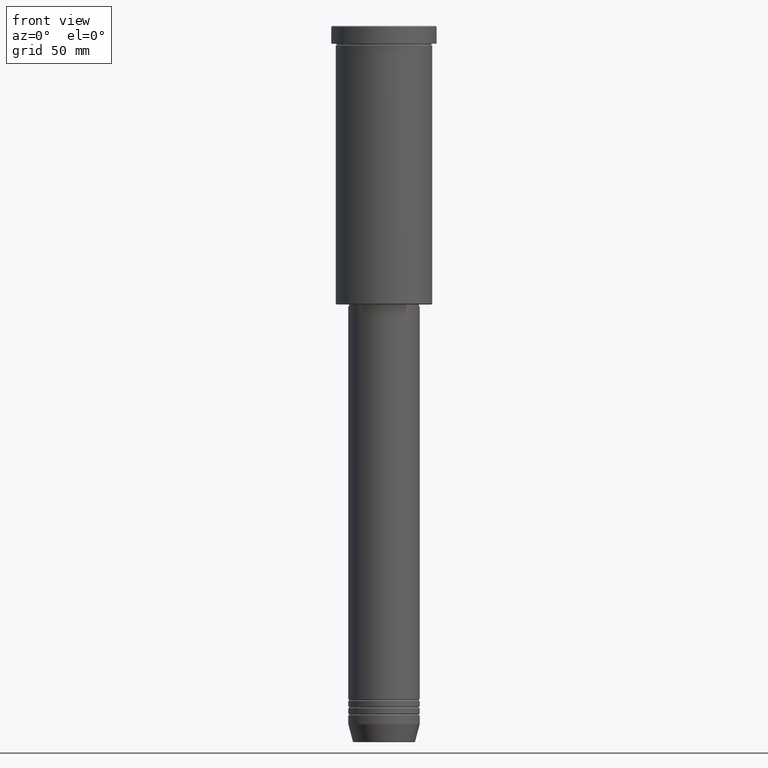
[diagram: clean part render]
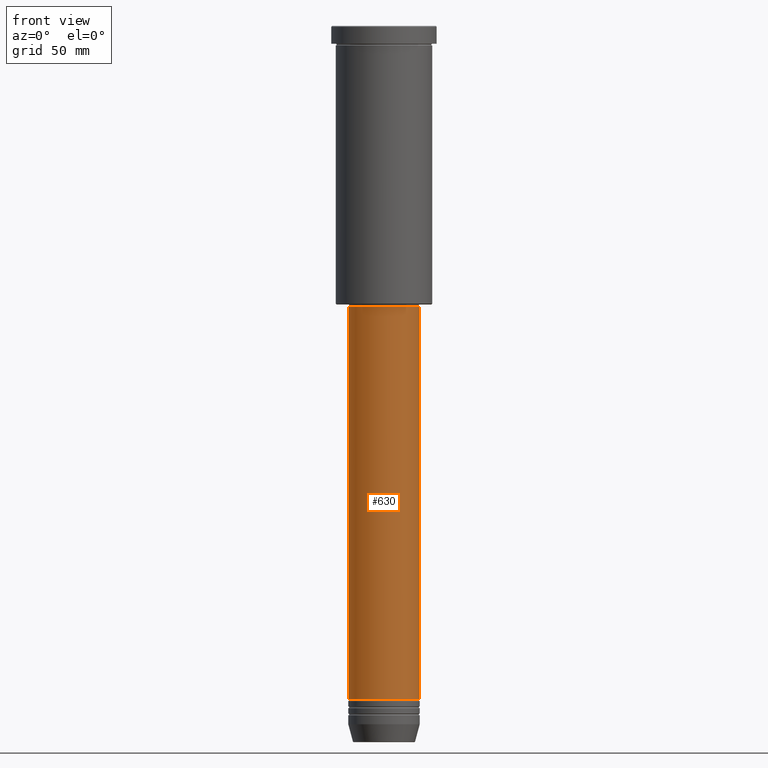
[diagram: same view with one face highlighted and labeled with its STEP entity id]
A machine part, front view. The second image highlights one B-rep face of the part: STEP entity #630.
In plain terms, the highlighted cylindrical surface (edge-blend (fillet) strip) has radius 20 mm, axis along (-0, -0, 1).
Its self-contained STEP definition (entity closure, byte-faithful):
#16 = CIRCLE ( 'NONE', #61, 19.99999999999999645 ) ;
#61 = AXIS2_PLACEMENT_3D ( 'NONE', #844, #295, #1042 ) ;
#109 = CARTESIAN_POINT ( 'NONE',  ( 20.00000000000000000, 0.000000000000000000, -376.9999999999998863 ) ) ;
#121 = FACE_OUTER_BOUND ( 'NONE', #122, .T. ) ;
#122 = EDGE_LOOP ( 'NONE', ( #969, #376, #1073, #557 ) ) ;
#165 = VERTEX_POINT ( 'NONE', #856 ) ;
#183 = CARTESIAN_POINT ( 'NONE',  ( -19.99999999999999645, 2.449293598294706119E-15, 0.000000000000000000 ) ) ;
#199 = DIRECTION ( 'NONE',  ( -0.000000000000000000, -0.000000000000000000, 1.000000000000000000 ) ) ;
#202 = LINE ( 'NONE', #183, #748 ) ;
#226 = CARTESIAN_POINT ( 'NONE',  ( 0.000000000000000000, 0.000000000000000000, 0.000000000000000000 ) ) ;
#234 = CYLINDRICAL_SURFACE ( 'NONE', #325, 19.99999999999999645 ) ;
#295 = DIRECTION ( 'NONE',  ( -0.000000000000000000, -0.000000000000000000, 1.000000000000000000 ) ) ;
#325 = AXIS2_PLACEMENT_3D ( 'NONE', #226, #502, #838 ) ;
#376 = ORIENTED_EDGE ( 'NONE', *, *, #836, .T. ) ;
#394 = VERTEX_POINT ( 'NONE', #988 ) ;
#440 = DIRECTION ( 'NONE',  ( -0.000000000000000000, -0.000000000000000000, 1.000000000000000000 ) ) ;
#472 = VERTEX_POINT ( 'NONE', #109 ) ;
#502 = DIRECTION ( 'NONE',  ( -0.000000000000000000, -0.000000000000000000, 1.000000000000000000 ) ) ;
#528 = EDGE_CURVE ( 'NONE', #1106, #394, #202, .T. ) ;
#557 = ORIENTED_EDGE ( 'NONE', *, *, #719, .F. ) ;
#630 = ADVANCED_FACE ( 'NONE', ( #121 ), #234, .T. ) ;
#677 = VECTOR ( 'NONE', #440, 1000.000000000000000 ) ;
#719 = EDGE_CURVE ( 'NONE', #394, #165, #16, .T. ) ;
#748 = VECTOR ( 'NONE', #199, 1000.000000000000000 ) ;
#787 = LINE ( 'NONE', #857, #677 ) ;
#836 = EDGE_CURVE ( 'NONE', #1106, #472, #962, .T. ) ;
#838 = DIRECTION ( 'NONE',  ( 1.000000000000000000, 0.000000000000000000, 0.000000000000000000 ) ) ;
#844 = CARTESIAN_POINT ( 'NONE',  ( 0.000000000000000000, 0.000000000000000000, -156.9999999999998863 ) ) ;
#856 = CARTESIAN_POINT ( 'NONE',  ( 19.99999999999999645, 0.000000000000000000, -156.9999999999998863 ) ) ;
#857 = CARTESIAN_POINT ( 'NONE',  ( 19.99999999999999645, 0.000000000000000000, 0.000000000000000000 ) ) ;
#870 = EDGE_CURVE ( 'NONE', #472, #165, #787, .T. ) ;
#953 = CARTESIAN_POINT ( 'NONE',  ( -20.00000000000000000, 2.449293598294706513E-15, -376.9999999999998863 ) ) ;
#962 = CIRCLE ( 'NONE', #1017, 20.00000000000000000 ) ;
#969 = ORIENTED_EDGE ( 'NONE', *, *, #528, .F. ) ;
#988 = CARTESIAN_POINT ( 'NONE',  ( -19.99999999999999645, 2.449293598294706119E-15, -156.9999999999998863 ) ) ;
#1017 = AXIS2_PLACEMENT_3D ( 'NONE', #1064, #1056, #1150 ) ;
#1042 = DIRECTION ( 'NONE',  ( 1.000000000000000000, 0.000000000000000000, 0.000000000000000000 ) ) ;
#1056 = DIRECTION ( 'NONE',  ( -0.000000000000000000, -0.000000000000000000, 1.000000000000000000 ) ) ;
#1064 = CARTESIAN_POINT ( 'NONE',  ( 0.000000000000000000, 0.000000000000000000, -376.9999999999998863 ) ) ;
#1073 = ORIENTED_EDGE ( 'NONE', *, *, #870, .T. ) ;
#1106 = VERTEX_POINT ( 'NONE', #953 ) ;
#1150 = DIRECTION ( 'NONE',  ( 1.000000000000000000, 0.000000000000000000, 0.000000000000000000 ) ) ;